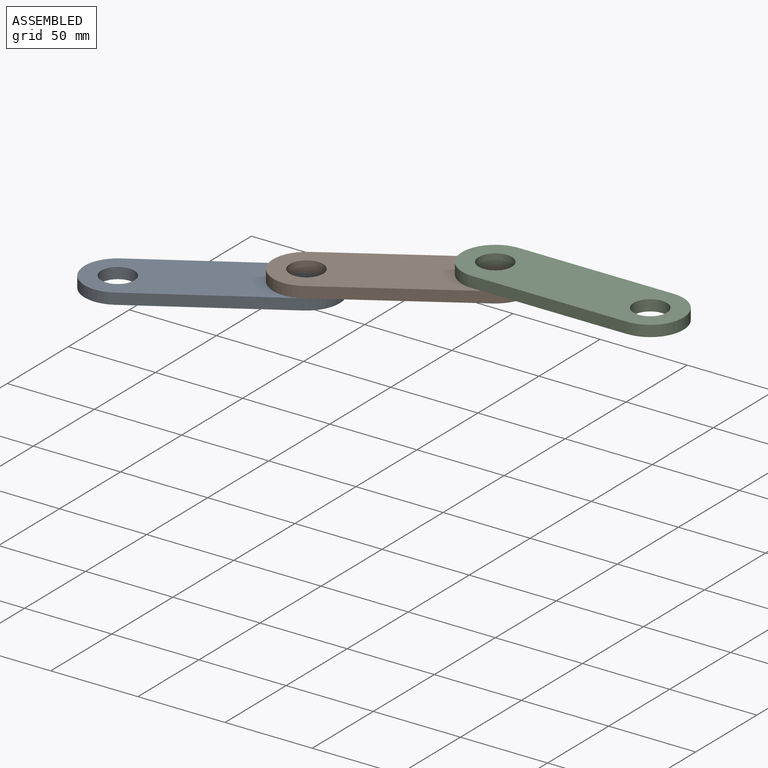
[diagram: assembled view]
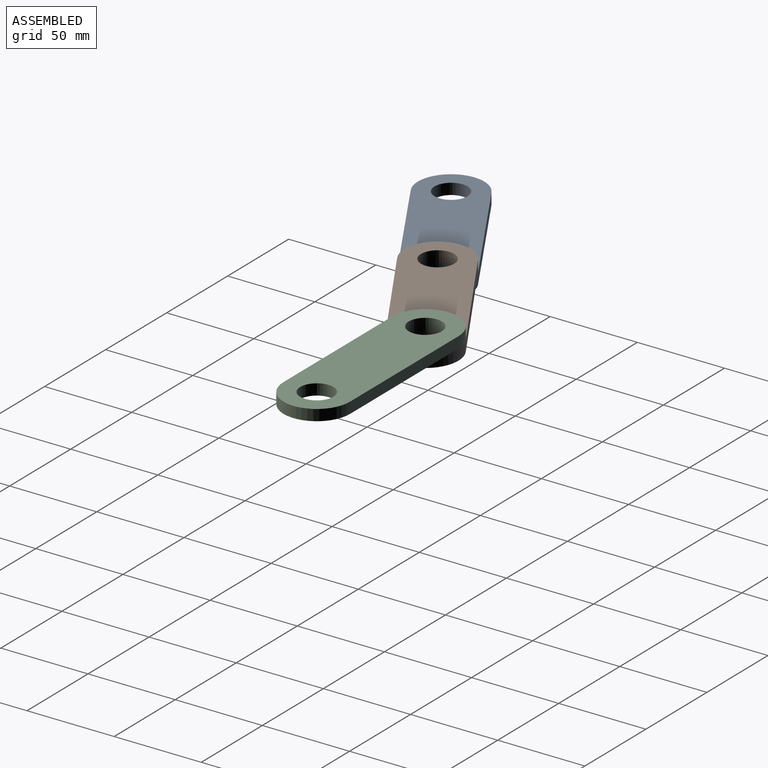
[diagram: assembled view, second angle]
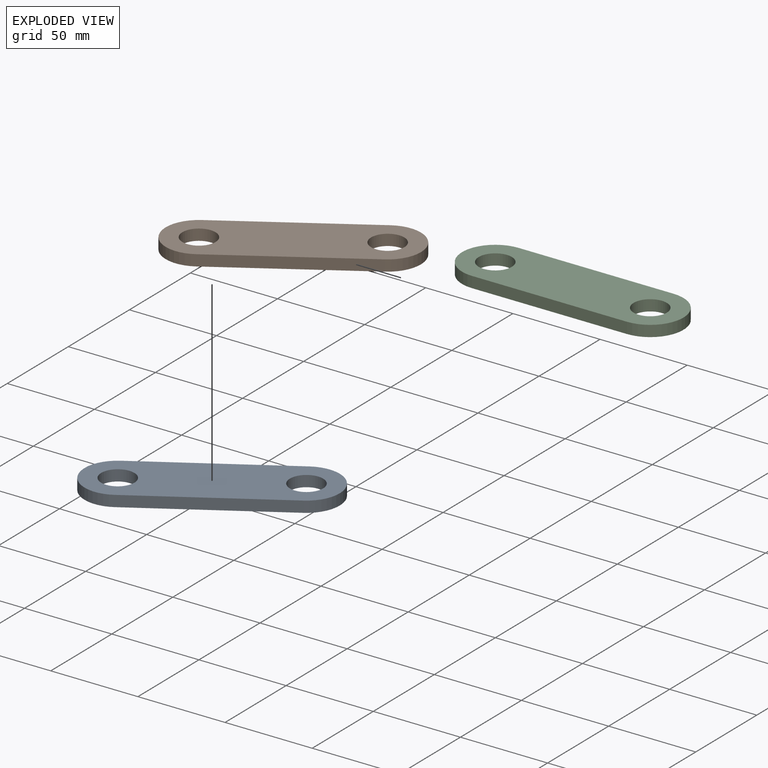
[diagram: exploded view]
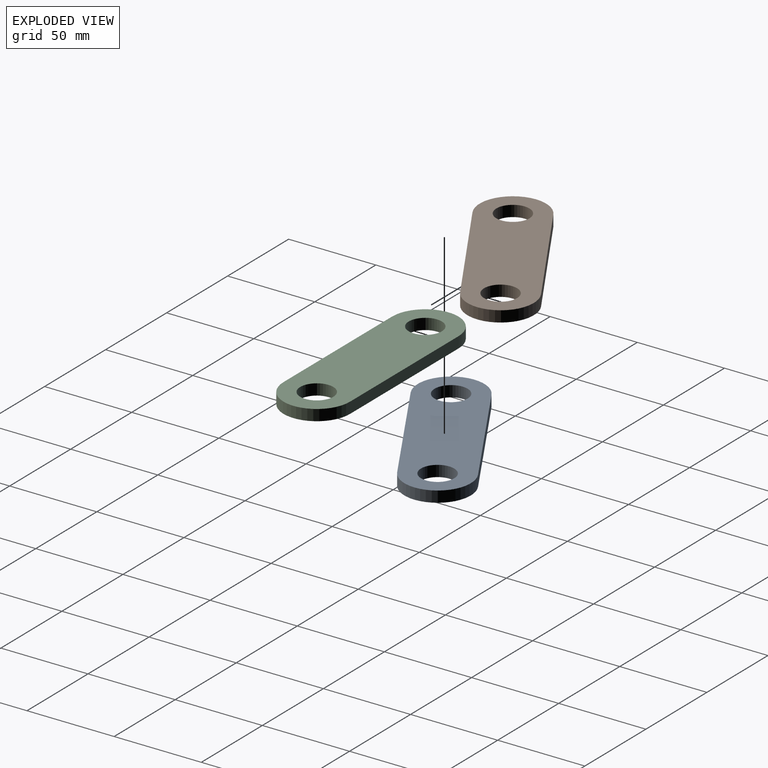
[diagram: exploded view, second angle]
ASSEMBLY  parts=3 mates=4
PART A: 8 faces, bbox 127x38.1x6.4 mm
  f0: cylinder r=19.05mm len=38.1mm, axis (0,0,-1), area 380mm2, adj f1,f5,f6,f7
  f1: plane 88.9x6.35mm, normal (0,-1,0), area 564.5mm2, adj f0,f2,f6,f7
  f2: cylinder r=19.05mm len=38.1mm, axis (0,0,-1), area 380mm2, adj f1,f5,f6,f7
  f3: cylinder r=9.53mm len=19.05mm, axis (0,0,-1), area 380mm2, adj f6,f7
  f4: cylinder r=9.53mm len=19.05mm, axis (0,0,-1), area 380mm2, adj f6,f7
  f5: plane 88.9x6.35mm, normal (0,1,0), area 564.5mm2, adj f0,f2,f6,f7
  f6: plane 127x38.1mm, normal (0,0,1), area 3957.1mm2, adj f0,f1,f2,f3,f4,f5
  f7: plane 127x38.1mm, normal (0,0,-1), area 3957.1mm2, adj f0,f1,f2,f3,f4,f5
PART B: same geometry as A
PART C: same geometry as A
PLACE A rot(axis=(0,0,-1),149.1deg) t=(-195.64,-102.57,-9.48)mm
PLACE B rot(axis=(0,0,-1),148.7deg) t=(-119.51,-56.67,-3.13)mm
PLACE C t=(-37.06,-33.6,3.22)mm fixed
MATE planar A.f0 <-> B.f2  axis (0,0,-1) through (-157.5,-79.74,-6.31)mm
MATE cylindrical B.f2 <-> A.f0  axis (0,0,1) through (-157.5,-79.74,0.04)mm
MATE cylindrical B.f0 <-> C.f0  axis (0,0,-1) through (-81.51,-33.6,0.04)mm
MATE planar B.f6 <-> C.f7  axis (0,0,1) through (-119.51,-56.67,0.04)mm
